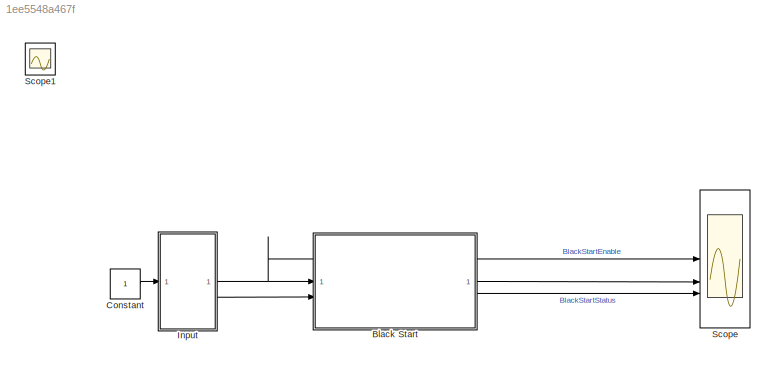
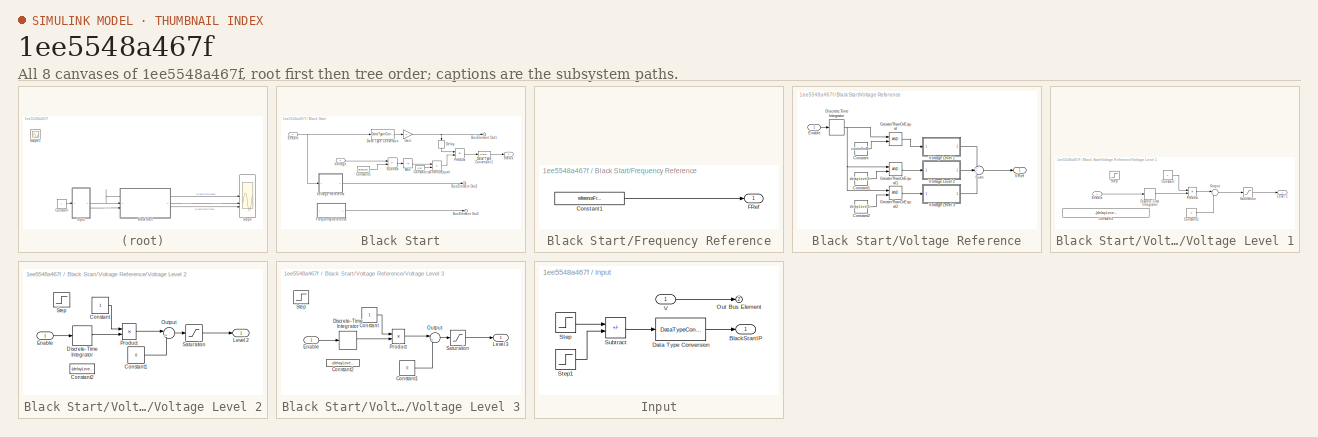
[diagram: thumbnail index - all 8 canvases of the model, root first then tree order]
MODEL slx_1ee5548a467f
KIND model
CONFIG AbsTol = auto
CONFIG EnableMultiTasking = off
CONFIG FixedStep = auto
CONFIG MaxStep = auto
CONFIG MinStep = auto
CONFIG PostLoadFcn = BlackStartParam;
CONFIG RelTol = 1e-3
CONFIG SampleTimeConstraint = Unconstrained
CONFIG SolverName = FixedStepDiscrete
CONFIG StartTime = 0.0
CONFIG StopTime = 20
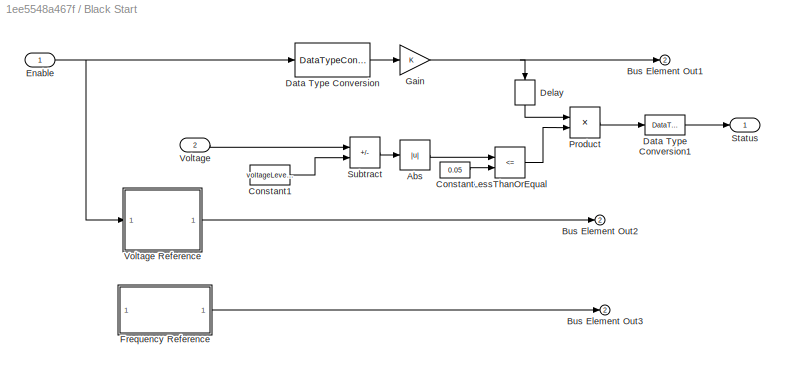
BLOCK [SubSystem] Black Start
  CopyFcn = set_param(gcbh,'LinkStatus','none')
BLOCK [Abs] Black Start/Abs
  SaturateOnIntegerOverflow = off
BLOCK [Outport] Black Start/Bus Element Out1
  Port = 2
BLOCK [Outport] Black Start/Bus Element Out2
  Port = 2
BLOCK [Outport] Black Start/Bus Element Out3
  Port = 2
BLOCK [Constant] Black Start/Constant
  Value = 0.05
BLOCK [Constant] Black Start/Constant1
  Value = voltageLevel1+voltageLevel2+voltageLevel3
BLOCK [DataTypeConversion] Black Start/Data Type Conversion
  OutDataTypeStr = double
  RndMeth = Floor
  SaturateOnIntegerOverflow = off
BLOCK [DataTypeConversion] Black Start/Data Type Conversion1
  OutDataTypeStr = boolean
  RndMeth = Floor
  SaturateOnIntegerOverflow = off
BLOCK [Delay] Black Start/Delay
  DelayLength = 10
  InputPortMap = u0
  NameLocation = left
BLOCK [Inport] Black Start/Enable
  OutDataTypeStr = boolean
BLOCK [SubSystem] Black Start/Frequency Reference
BLOCK [Constant] Black Start/Frequency Reference/Constant1
  Value = referenceFrequency
BLOCK [Outport] Black Start/Frequency Reference/FRef
BLOCK [Gain] Black Start/Gain
BLOCK [RelationalOperator] Black Start/LessThanOrEqual
  InputSameDT = off
  Operator = <=
  OutDataTypeStr = boolean
  RndMeth = Simplest
BLOCK [Product] Black Start/Product
BLOCK [Outport] Black Start/Status
BLOCK [Sum] Black Start/Subtract
  IconShape = rectangular
  Inputs = +-
BLOCK [Inport] Black Start/Voltage
  Port = 2
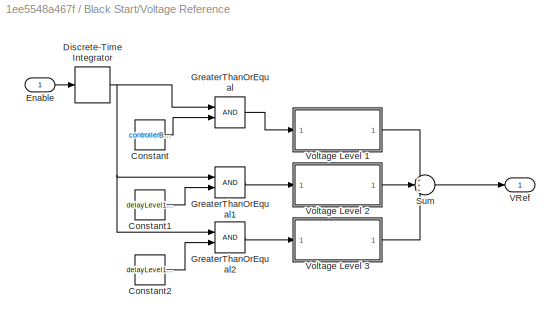
BLOCK [SubSystem] Black Start/Voltage Reference
BLOCK [Constant] Black Start/Voltage Reference/Constant
  Value = controllerBlackStart
BLOCK [Constant] Black Start/Voltage Reference/Constant1
  Value = delayLevel1+controllerBlackStart
BLOCK [Constant] Black Start/Voltage Reference/Constant2
  Value = delayLevel1+controllerBlackStart+delayLevel2
BLOCK [DiscreteIntegrator] Black Start/Voltage Reference/Discrete-Time Integrator
  ICPrevOutput = DiscIntNeverNeededParam
  ICPrevScaledInput = DiscIntNeverNeededParam
  InitialConditionSetting = Auto
  OutDataTypeStr = double
  SampleTime = Ts
BLOCK [Inport] Black Start/Voltage Reference/Enable
BLOCK [RelationalOperator] Black Start/Voltage Reference/GreaterThanOrEqual
  InputSameDT = off
  OutDataTypeStr = boolean
  RndMeth = Simplest
BLOCK [RelationalOperator] Black Start/Voltage Reference/GreaterThanOrEqual1
  InputSameDT = off
  OutDataTypeStr = boolean
  RndMeth = Simplest
BLOCK [RelationalOperator] Black Start/Voltage Reference/GreaterThanOrEqual2
  InputSameDT = off
  OutDataTypeStr = boolean
  RndMeth = Simplest
BLOCK [Sum] Black Start/Voltage Reference/Sum
  Inputs = +++
BLOCK [Outport] Black Start/Voltage Reference/VRef
BLOCK [SubSystem] Black Start/Voltage Reference/Voltage Level 1
BLOCK [Constant] Black Start/Voltage Reference/Voltage Level 1/Constant
BLOCK [Constant] Black Start/Voltage Reference/Voltage Level 1/Constant1
  Value = 0
BLOCK [Constant] Black Start/Voltage Reference/Voltage Level 1/Constant2
  DisableCoverage = on
  OutDataTypeStr = Inherit: Inherit via back propagation
  SampleTime = Ts
  Value = -(delayLevel1)
BLOCK [DiscreteIntegrator] Black Start/Voltage Reference/Voltage Level 1/Discrete-Time Integrator
  ICPrevOutput = DiscIntNeverNeededParam
  ICPrevScaledInput = DiscIntNeverNeededParam
  InitialConditionSetting = Auto
  OutDataTypeStr = double
  SampleTime = Ts
BLOCK [Inport] Black Start/Voltage Reference/Voltage Level 1/Enable
BLOCK [Outport] Black Start/Voltage Reference/Voltage Level 1/Level 1
BLOCK [Sum] Black Start/Voltage Reference/Voltage Level 1/Output
  InputSameDT = on
  Inputs = |++
  OutDataTypeStr = Inherit: Same as first input
  SaturateOnIntegerOverflow = on
BLOCK [Product] Black Start/Voltage Reference/Voltage Level 1/Product
  DisableCoverage = on
  InputSameDT = on
  OutDataTypeStr = Inherit: Same as first input
  SaturateOnIntegerOverflow = on
BLOCK [Saturate] Black Start/Voltage Reference/Voltage Level 1/Saturation
  LowerLimit = 0
  UpperLimit = voltageLevel1
BLOCK [Step] Black Start/Voltage Reference/Voltage Level 1/Step
  Commented = on
  DisableCoverage = on
  OutDataTypeStr = fixdt('double', 'DataTypeOverride', 'Off')
  SampleTime = Ts
  Time = controllerBlackStart+delayLevel1
BLOCK [SubSystem] Black Start/Voltage Reference/Voltage Level 2
BLOCK [Constant] Black Start/Voltage Reference/Voltage Level 2/Constant
BLOCK [Constant] Black Start/Voltage Reference/Voltage Level 2/Constant1
  Value = 0
BLOCK [Constant] Black Start/Voltage Reference/Voltage Level 2/Constant2
  Commented = on
  DisableCoverage = on
  OutDataTypeStr = Inherit: Inherit via back propagation
  SampleTime = Ts
  Value = -(delayLevel2)
BLOCK [DiscreteIntegrator] Black Start/Voltage Reference/Voltage Level 2/Discrete-Time Integrator
  ICPrevOutput = DiscIntNeverNeededParam
  ICPrevScaledInput = DiscIntNeverNeededParam
  InitialConditionSetting = Auto
  OutDataTypeStr = double
  SampleTime = Ts
BLOCK [Inport] Black Start/Voltage Reference/Voltage Level 2/Enable
BLOCK [Outport] Black Start/Voltage Reference/Voltage Level 2/Level 2
BLOCK [Sum] Black Start/Voltage Reference/Voltage Level 2/Output
  InputSameDT = on
  Inputs = |++
  OutDataTypeStr = Inherit: Same as first input
  SaturateOnIntegerOverflow = on
BLOCK [Product] Black Start/Voltage Reference/Voltage Level 2/Product
  DisableCoverage = on
  InputSameDT = on
  OutDataTypeStr = Inherit: Same as first input
  SaturateOnIntegerOverflow = on
BLOCK [Saturate] Black Start/Voltage Reference/Voltage Level 2/Saturation
  LowerLimit = 0
  UpperLimit = voltageLevel2
BLOCK [Step] Black Start/Voltage Reference/Voltage Level 2/Step
  Commented = on
  DisableCoverage = on
  OutDataTypeStr = fixdt('double', 'DataTypeOverride', 'Off')
  SampleTime = Ts
  Time = delayLevel1+delayLevel2
BLOCK [SubSystem] Black Start/Voltage Reference/Voltage Level 3
BLOCK [Constant] Black Start/Voltage Reference/Voltage Level 3/Constant
BLOCK [Constant] Black Start/Voltage Reference/Voltage Level 3/Constant1
  Value = 0
BLOCK [Constant] Black Start/Voltage Reference/Voltage Level 3/Constant2
  Commented = on
  DisableCoverage = on
  OutDataTypeStr = Inherit: Inherit via back propagation
  SampleTime = Ts
  Value = -(delayLevel3+delayLevel3)
BLOCK [DiscreteIntegrator] Black Start/Voltage Reference/Voltage Level 3/Discrete-Time Integrator
  ICPrevOutput = DiscIntNeverNeededParam
  ICPrevScaledInput = DiscIntNeverNeededParam
  InitialConditionSetting = Auto
  OutDataTypeStr = double
  SampleTime = Ts
BLOCK [Inport] Black Start/Voltage Reference/Voltage Level 3/Enable
BLOCK [Outport] Black Start/Voltage Reference/Voltage Level 3/Level 3
BLOCK [Sum] Black Start/Voltage Reference/Voltage Level 3/Output
  InputSameDT = on
  Inputs = |++
  OutDataTypeStr = Inherit: Same as first input
  SaturateOnIntegerOverflow = on
BLOCK [Product] Black Start/Voltage Reference/Voltage Level 3/Product
  DisableCoverage = on
  InputSameDT = on
  OutDataTypeStr = Inherit: Same as first input
  SaturateOnIntegerOverflow = on
BLOCK [Saturate] Black Start/Voltage Reference/Voltage Level 3/Saturation
  LowerLimit = 0
  UpperLimit = voltageLevel3
BLOCK [Step] Black Start/Voltage Reference/Voltage Level 3/Step
  Commented = on
  DisableCoverage = on
  OutDataTypeStr = fixdt('double', 'DataTypeOverride', 'Off')
  SampleTime = Ts
  Time = delayLevel1+delayLevel2+delayLevel3
BLOCK [Constant] Constant
BLOCK [SubSystem] Input
BLOCK [Outport] Input/BlackStartIP
BLOCK [DataTypeConversion] Input/Data Type Conversion
  OutDataTypeStr = boolean
  RndMeth = Floor
  SaturateOnIntegerOverflow = off
BLOCK [Outport] Input/Out Bus Element
  Port = 2
BLOCK [Step] Input/Step
  SampleTime = 0
  Time = 5
BLOCK [Step] Input/Step1
  SampleTime = 0
  Time = 14
BLOCK [Sum] Input/Subtract
  IconShape = rectangular
  Inputs = +-
BLOCK [Inport] Input/V
BLOCK [Scope] Scope
  ActiveDisplayYMaximum = 1.125
  ActiveDisplayYMinimum = -0.12499999999999997
  Floating = off
  GraphicalSettings = {"Style":{"BackgroundColor":[0.12941176470588237,0.12941176470588237,0.12941176470588237],"AxesColor":[0.07058823529411765,0.07058823529411765,0.07058823529411765],"LabelsColor":[0.8509803921568627,0.8509803921568627,0.8509803921568627],"PreserveColors":false,"Visible":[true,true,true,true,true],"LineStyle":["-","-","-","-","-"],"LineWidth":[1.5,1.5,1.5,1.5,1.5],"BarWidth":[0.9,0.9,0.9,0.9,0.9],"L...<+3086ch>
  LayoutDimensionsString = [3,1]
  MultipleDisplayCache = [{"MaxYLimMag":1.125,"MaxYLimReal":1.125,"MinYLimMag":0,"MinYLimReal":-0.12499999999999997,"PlotAsMagnitudePhase":false,"ShowGrid":true,"ShowLegend":false,"Title":"%<SignalLabel>","YLabel":""},{"MaxYLimMag":1.125,"MaxYLimReal":1.125,"MinYLimMag":0,"MinYLimReal":-0.12499999999999997,"PlotAsMagnitudePhase":false,"ShowGrid":true,"ShowLegend":false,"Title":"%<SignalLabel>","YLabel":""},{"MaxYLimMag":1...<+177ch>
  NumInputPorts = 3
  ScopeFrameLocation = window
  WasSavedAsWebScope = on
  WindowPosition = [1281.000000,0.000000,1280.000000,673.000000,]
BLOCK [Scope] Scope1
  DataLoggingVariableName = ScopeData3
  Floating = off
  GraphicalSettings = {"GraphicalSettings":{"LegacySettings":true,"Style":{"Style":{"AxesColor":"[0 0 0]","ChannelNames":[""],"ColorOrder":"[1 0.909803921568627 0.392156862745098;0.149019607843137 0.549019607843137 0.866666666666667;0.96078431372549 0.466666666666667 0.16078431372549;0.286274509803922 0.858823529411765 0.250980392156863;0.752941176470588 0.36078431372549 0.984313725490196;0.423529411764706 0.9568627450...<+436ch>
  IOType = viewer
  NumInputPorts = 1
  WasSavedAsWebScope = on
LINE Black Start/Abs:1 -> Black Start/LessThanOrEqual:1
LINE Black Start/Constant1:1 -> Black Start/Subtract:2
LINE Black Start/Constant:1 -> Black Start/LessThanOrEqual:2
LINE Black Start/Data Type Conversion1:1 -> Black Start/Status:1
LINE Black Start/Data Type Conversion:1 -> Black Start/Gain:1
LINE Black Start/Delay:1 -> Black Start/Product:1
NET Black Start/Enable:1 -> Black Start/Data Type Conversion:1, Black Start/Voltage Reference:1
LINE Black Start/Frequency Reference/Constant1:1 -> Black Start/Frequency Reference/FRef:1
LINE Black Start/Frequency Reference:1 -> Black Start/Bus Element Out3:1
NET Black Start/Gain:1 -> Black Start/Bus Element Out1:1, Black Start/Delay:1
LINE Black Start/LessThanOrEqual:1 -> Black Start/Product:2
LINE Black Start/Product:1 -> Black Start/Data Type Conversion1:1
LINE Black Start/Subtract:1 -> Black Start/Abs:1
LINE Black Start/Voltage Reference/Constant1:1 -> Black Start/Voltage Reference/GreaterThanOrEqual1:2
LINE Black Start/Voltage Reference/Constant2:1 -> Black Start/Voltage Reference/GreaterThanOrEqual2:2
LINE Black Start/Voltage Reference/Constant:1 -> Black Start/Voltage Reference/GreaterThanOrEqual:2
NET Black Start/Voltage Reference/Discrete-Time Integrator:1 -> Black Start/Voltage Reference/GreaterThanOrEqual1:1, Black Start/Voltage Reference/GreaterThanOrEqual2:1, Black Start/Voltage Reference/GreaterThanOrEqual:1
LINE Black Start/Voltage Reference/Enable:1 -> Black Start/Voltage Reference/Discrete-Time Integrator:1
LINE Black Start/Voltage Reference/GreaterThanOrEqual1:1 -> Black Start/Voltage Reference/Voltage Level 2:1
LINE Black Start/Voltage Reference/GreaterThanOrEqual2:1 -> Black Start/Voltage Reference/Voltage Level 3:1
LINE Black Start/Voltage Reference/GreaterThanOrEqual:1 -> Black Start/Voltage Reference/Voltage Level 1:1
LINE Black Start/Voltage Reference/Sum:1 -> Black Start/Voltage Reference/VRef:1
LINE Black Start/Voltage Reference/Voltage Level 1/Constant1:1 -> Black Start/Voltage Reference/Voltage Level 1/Output:2
LINE Black Start/Voltage Reference/Voltage Level 1/Constant:1 -> Black Start/Voltage Reference/Voltage Level 1/Product:1
LINE Black Start/Voltage Reference/Voltage Level 1/Discrete-Time Integrator:1 -> Black Start/Voltage Reference/Voltage Level 1/Product:2
LINE Black Start/Voltage Reference/Voltage Level 1/Enable:1 -> Black Start/Voltage Reference/Voltage Level 1/Discrete-Time Integrator:1
LINE Black Start/Voltage Reference/Voltage Level 1/Output:1 -> Black Start/Voltage Reference/Voltage Level 1/Saturation:1
LINE Black Start/Voltage Reference/Voltage Level 1/Product:1 -> Black Start/Voltage Reference/Voltage Level 1/Output:1
LINE Black Start/Voltage Reference/Voltage Level 1/Saturation:1 -> Black Start/Voltage Reference/Voltage Level 1/Level 1:1
LINE Black Start/Voltage Reference/Voltage Level 1:1 -> Black Start/Voltage Reference/Sum:1
LINE Black Start/Voltage Reference/Voltage Level 2/Constant1:1 -> Black Start/Voltage Reference/Voltage Level 2/Output:2
LINE Black Start/Voltage Reference/Voltage Level 2/Constant:1 -> Black Start/Voltage Reference/Voltage Level 2/Product:1
LINE Black Start/Voltage Reference/Voltage Level 2/Discrete-Time Integrator:1 -> Black Start/Voltage Reference/Voltage Level 2/Product:2
LINE Black Start/Voltage Reference/Voltage Level 2/Enable:1 -> Black Start/Voltage Reference/Voltage Level 2/Discrete-Time Integrator:1
LINE Black Start/Voltage Reference/Voltage Level 2/Output:1 -> Black Start/Voltage Reference/Voltage Level 2/Saturation:1
LINE Black Start/Voltage Reference/Voltage Level 2/Product:1 -> Black Start/Voltage Reference/Voltage Level 2/Output:1
LINE Black Start/Voltage Reference/Voltage Level 2/Saturation:1 -> Black Start/Voltage Reference/Voltage Level 2/Level 2:1
LINE Black Start/Voltage Reference/Voltage Level 2:1 -> Black Start/Voltage Reference/Sum:2
LINE Black Start/Voltage Reference/Voltage Level 3/Constant1:1 -> Black Start/Voltage Reference/Voltage Level 3/Output:2
LINE Black Start/Voltage Reference/Voltage Level 3/Constant:1 -> Black Start/Voltage Reference/Voltage Level 3/Product:1
LINE Black Start/Voltage Reference/Voltage Level 3/Discrete-Time Integrator:1 -> Black Start/Voltage Reference/Voltage Level 3/Product:2
LINE Black Start/Voltage Reference/Voltage Level 3/Enable:1 -> Black Start/Voltage Reference/Voltage Level 3/Discrete-Time Integrator:1
LINE Black Start/Voltage Reference/Voltage Level 3/Output:1 -> Black Start/Voltage Reference/Voltage Level 3/Saturation:1
LINE Black Start/Voltage Reference/Voltage Level 3/Product:1 -> Black Start/Voltage Reference/Voltage Level 3/Output:1
LINE Black Start/Voltage Reference/Voltage Level 3/Saturation:1 -> Black Start/Voltage Reference/Voltage Level 3/Level 3:1
LINE Black Start/Voltage Reference/Voltage Level 3:1 -> Black Start/Voltage Reference/Sum:3
LINE Black Start/Voltage Reference:1 -> Black Start/Bus Element Out2:1
LINE Black Start/Voltage:1 -> Black Start/Subtract:1
LINE Black Start:1 -> Scope:2
LINE Black Start:2 -> Scope:3
LINE Constant:1 -> Input:1
LINE Input/Data Type Conversion:1 -> Input/BlackStartIP:1
LINE Input/Step1:1 -> Input/Subtract:2
LINE Input/Step:1 -> Input/Subtract:1
LINE Input/Subtract:1 -> Input/Data Type Conversion:1
LINE Input/V:1 -> Input/Out Bus Element:1
NET Input:1 -> Black Start:1, Scope:1
LINE Input:2 -> Black Start:2
note: NET lines group one-source signal fan-out (src -> all destinations, sorted); 1:1 wires keep LINE
